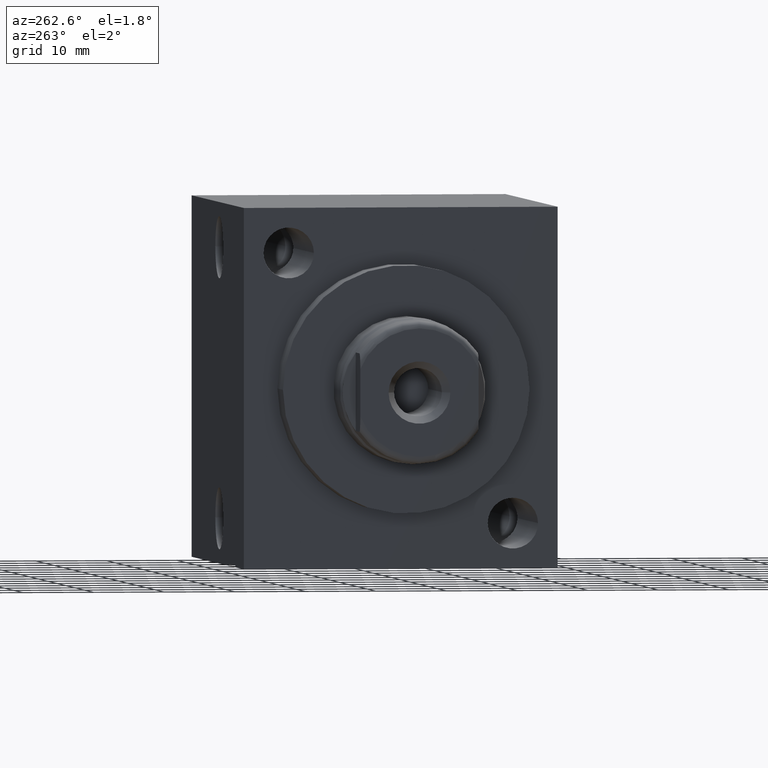
[diagram: clean part render]
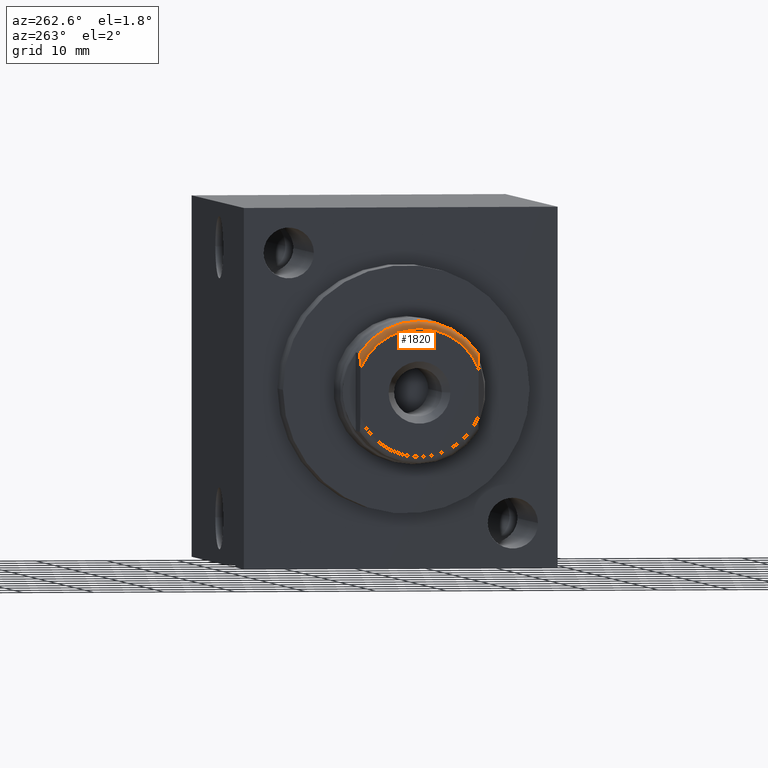
[diagram: same view with one face highlighted and labeled with its STEP entity id]
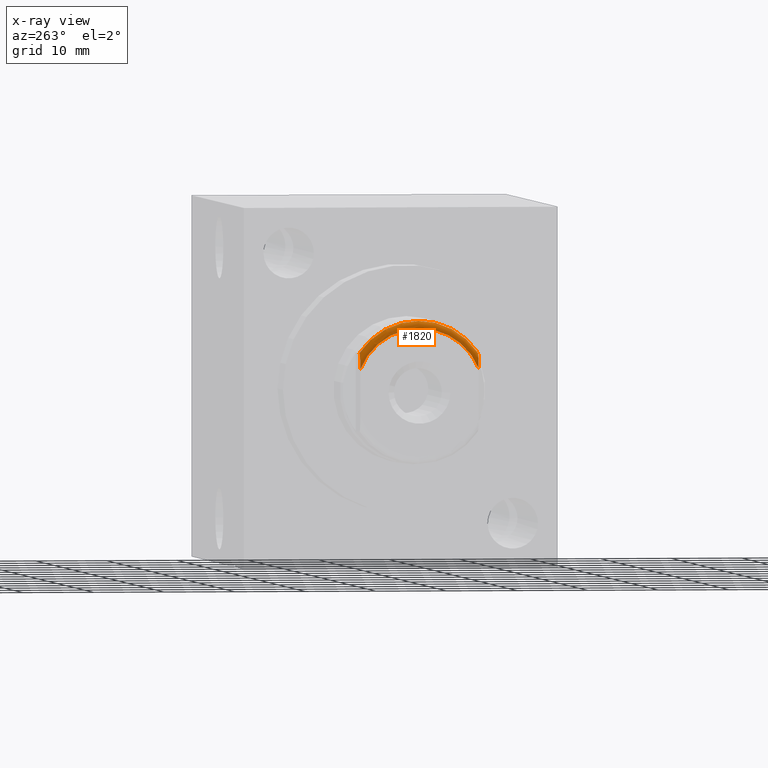
[diagram: x-ray of the same camera — body ghosted, the highlighted face saturated]
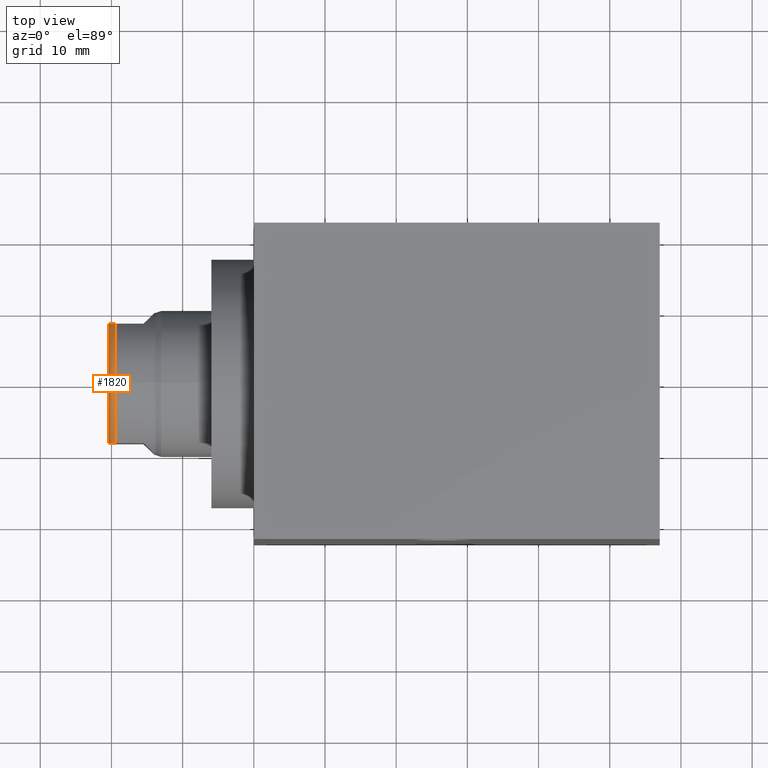
[diagram: same view with one face highlighted and labeled with its STEP entity id]
A machine part, auxiliary view. The second image highlights one B-rep face of the part: STEP entity #1820.
The next image is the same camera in x-ray: the body ghosted, the highlighted face saturated — about 0% of this face is hidden behind the body in this view.
A second angle (top view) of the same face is appended — the face is thin or edge-on in the first view.
In plain terms, the highlighted toroidal blend (fillet) surface has major radius 9.017 mm and minor (blend) radius 1.016 mm.
Its self-contained STEP definition (entity closure, byte-faithful):
#227=CARTESIAN_POINT('',(-2.0447E1,0.E0,0.E0));
#228=DIRECTION('',(-1.E0,0.E0,0.E0));
#229=DIRECTION('',(0.E0,-9.295774647887E-1,3.686268261494E-1));
#230=AXIS2_PLACEMENT_3D('',#227,#228,#229);
#235=CARTESIAN_POINT('',(-1.9431E1,8.382E0,5.513906509907E0));
#236=CARTESIAN_POINT('',(-1.951075380042E1,8.382E0,5.513906509907E0));
#237=CARTESIAN_POINT('',(-1.966358005317E1,8.382E0,5.481575849881E0));
#238=CARTESIAN_POINT('',(-1.988466131686E1,8.382E0,5.335099311571E0));
#239=CARTESIAN_POINT('',(-2.006204506114E1,8.382E0,5.119680336664E0));
#240=CARTESIAN_POINT('',(-2.019335683490E1,8.382E0,4.874607700605E0));
#241=CARTESIAN_POINT('',(-2.028762309922E1,8.382E0,4.619786639168E0));
#242=CARTESIAN_POINT('',(-2.035500383109E1,8.382E0,4.358308738112E0));
#243=CARTESIAN_POINT('',(-2.040060943258E1,8.382E0,4.096062121160E0));
#244=CARTESIAN_POINT('',(-2.042903348130E1,8.382E0,3.836736128925E0));
#245=CARTESIAN_POINT('',(-2.044407771805E1,8.382E0,3.580229431532E0));
#246=CARTESIAN_POINT('',(-2.0447E1,8.382E0,3.409242587349E0));
#247=CARTESIAN_POINT('',(-2.0447E1,8.382E0,3.323908091389E0));
#252=CARTESIAN_POINT('',(-1.9431E1,0.E0,0.E0));
#253=DIRECTION('',(-1.E0,0.E0,0.E0));
#254=DIRECTION('',(0.E0,0.E0,1.E0));
#255=AXIS2_PLACEMENT_3D('',#252,#253,#254);
#260=CARTESIAN_POINT('',(-1.9431E1,0.E0,0.E0));
#261=DIRECTION('',(1.E0,0.E0,0.E0));
#262=DIRECTION('',(0.E0,0.E0,1.E0));
#263=AXIS2_PLACEMENT_3D('',#260,#261,#262);
#268=CARTESIAN_POINT('',(-2.0447E1,-8.382E0,3.323908091389E0));
#269=CARTESIAN_POINT('',(-2.0447E1,-8.382E0,3.408393673001E0));
#270=CARTESIAN_POINT('',(-2.044413241443E1,-8.382E0,3.577879806016E0));
#271=CARTESIAN_POINT('',(-2.042936421885E1,-8.382E0,3.832390694262E0));
#272=CARTESIAN_POINT('',(-2.040131191426E1,-8.382E0,4.090984558970E0));
#273=CARTESIAN_POINT('',(-2.035598879586E1,-8.382E0,4.353774240563E0));
#274=CARTESIAN_POINT('',(-2.028864903680E1,-8.382E0,4.616635442906E0));
#275=CARTESIAN_POINT('',(-2.019409032931E1,-8.382E0,4.873125456861E0));
#276=CARTESIAN_POINT('',(-2.006221835087E1,-8.382E0,5.119585679481E0));
#277=CARTESIAN_POINT('',(-1.988399907334E1,-8.382E0,5.335819746068E0));
#278=CARTESIAN_POINT('',(-1.966257562114E1,-8.382E0,5.481960806581E0));
#279=CARTESIAN_POINT('',(-1.951031139187E1,-8.382E0,5.513906509907E0));
#280=CARTESIAN_POINT('',(-1.9431E1,-8.382E0,5.513906509907E0));
#1573=CARTESIAN_POINT('',(-1.9431E1,0.E0,1.0033E1));
#1575=VERTEX_POINT('',#1573);
#1585=CARTESIAN_POINT('',(-2.0447E1,8.382E0,3.323908091389E0));
#1587=VERTEX_POINT('',#1585);
#1589=CARTESIAN_POINT('',(-2.0447E1,-8.382E0,3.323908091389E0));
#1591=VERTEX_POINT('',#1589);
#1592=CARTESIAN_POINT('',(-1.9431E1,-8.382E0,5.513906509907E0));
#1594=VERTEX_POINT('',#1592);
#1604=CARTESIAN_POINT('',(-1.9431E1,8.382E0,5.513906509907E0));
#1605=VERTEX_POINT('',#1604);
#1805=CARTESIAN_POINT('',(-1.9431E1,0.E0,0.E0));
#1806=DIRECTION('',(1.E0,0.E0,0.E0));
#1807=DIRECTION('',(0.E0,0.E0,1.E0));
#1808=AXIS2_PLACEMENT_3D('',#1805,#1806,#1807);
#1809=TOROIDAL_SURFACE('',#1808,9.017E0,1.016E0);
#1810=ORIENTED_EDGE('',*,*,#1724,.T.);
#1811=ORIENTED_EDGE('',*,*,#1788,.F.);
#1813=ORIENTED_EDGE('',*,*,#1812,.F.);
#1815=ORIENTED_EDGE('',*,*,#1814,.T.);
#1817=ORIENTED_EDGE('',*,*,#1816,.F.);
#1818=EDGE_LOOP('',(#1810,#1811,#1813,#1815,#1817));
#1819=FACE_OUTER_BOUND('',#1818,.F.);
#1820=ADVANCED_FACE('',(#1819),#1809,.T.);
#231=CIRCLE('',#230,9.017E0);
#248=B_SPLINE_CURVE_WITH_KNOTS('',3,(#235,#236,#237,#238,#239,#240,#241,#242,
#243,#244,#245,#246,#247),.UNSPECIFIED.,.F.,.F.,(4,1,1,1,1,1,1,1,1,1,4),(0.E0,
1.E-1,2.E-1,3.E-1,4.E-1,5.E-1,6.E-1,7.E-1,8.E-1,9.E-1,1.E0),.UNSPECIFIED.);
#256=CIRCLE('',#255,1.0033E1);
#264=CIRCLE('',#263,1.0033E1);
#281=B_SPLINE_CURVE_WITH_KNOTS('',3,(#268,#269,#270,#271,#272,#273,#274,#275,
#276,#277,#278,#279,#280),.UNSPECIFIED.,.F.,.F.,(4,1,1,1,1,1,1,1,1,1,4),(0.E0,
1.E-1,2.E-1,3.E-1,4.E-1,5.E-1,6.E-1,7.E-1,8.E-1,9.E-1,1.E0),.UNSPECIFIED.);
#1724=EDGE_CURVE('',#1591,#1587,#231,.T.);
#1788=EDGE_CURVE('',#1605,#1587,#248,.T.);
#1812=EDGE_CURVE('',#1575,#1605,#256,.T.);
#1814=EDGE_CURVE('',#1575,#1594,#264,.T.);
#1816=EDGE_CURVE('',#1591,#1594,#281,.T.);